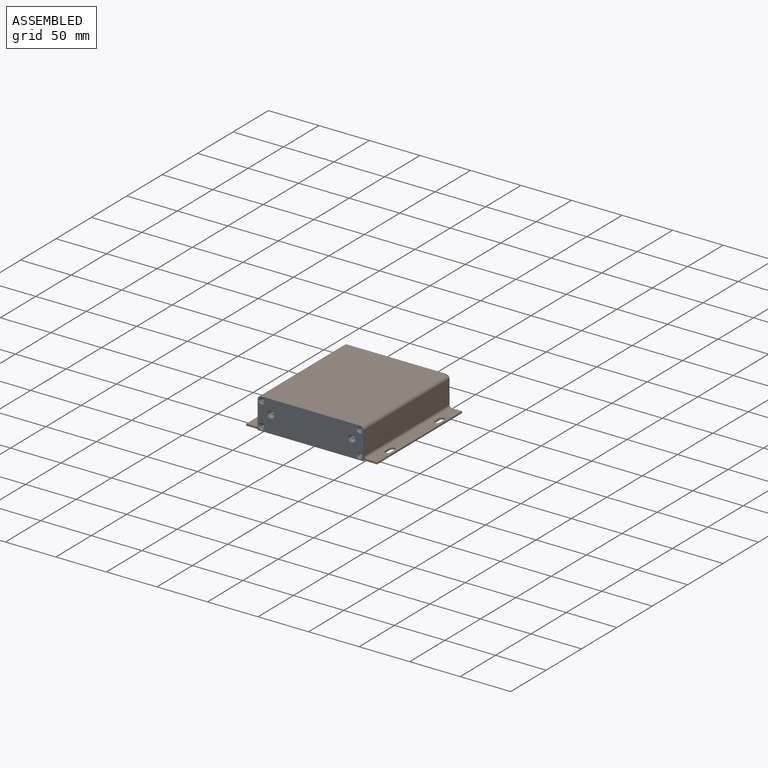
[diagram: assembled view]
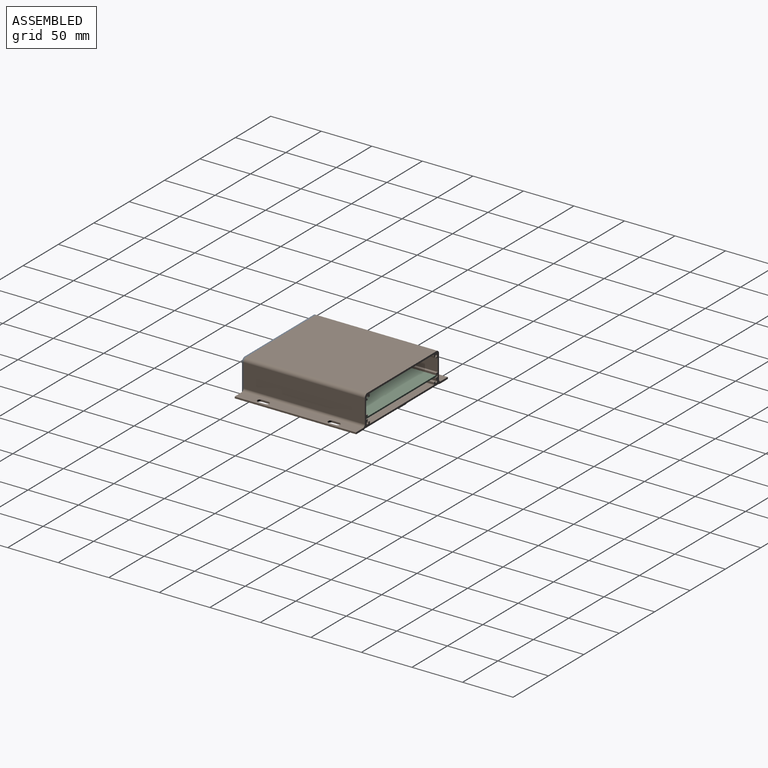
[diagram: assembled view, second angle]
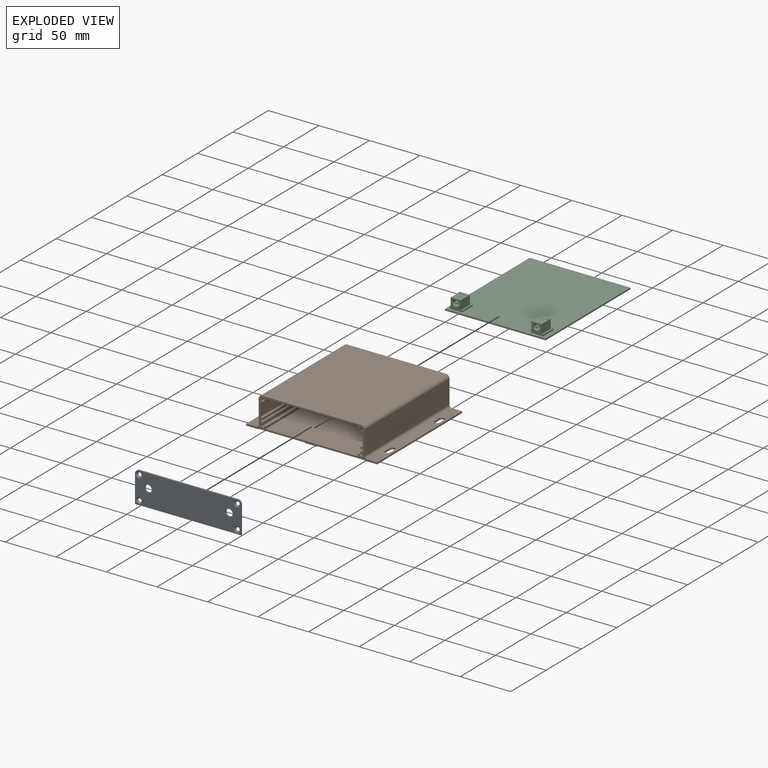
[diagram: exploded view]
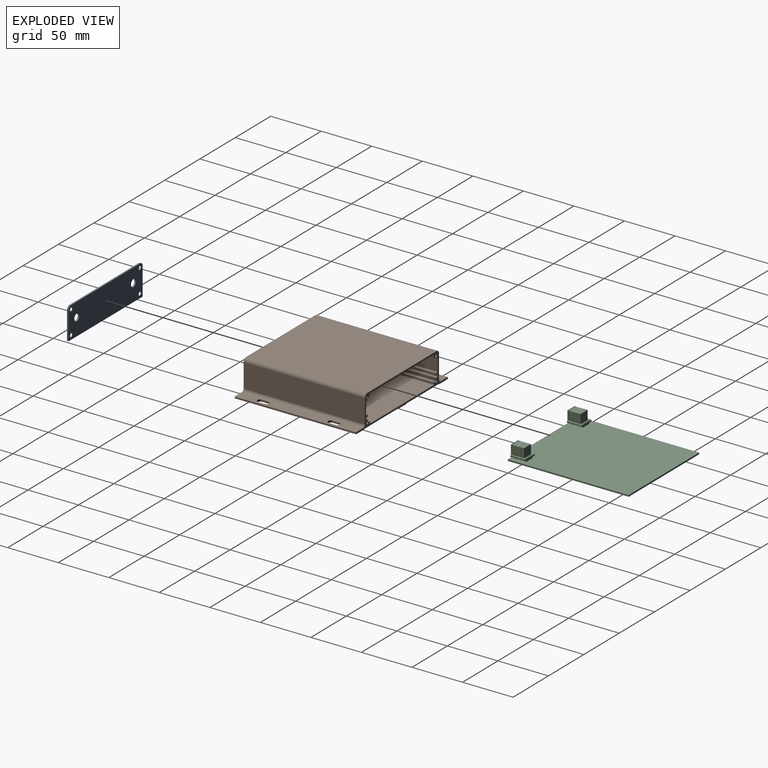
[diagram: exploded view, second angle]
FCSTD DOCUMENT  (FreeCAD 1.0R39319 (Git))
Label: K127-13031-H7-L120_reference_PJ-063AH
License: All rights reserved
LicenseURL: https://en.wikipedia.org/wiki/All_rights_reserved
objects: App::FeaturePython×7, App::Link×3, Assembly::JointGroup×1, Assembly::AssemblyObject×1
EXTERNAL_REF file=K127-13031-H7-L120.FCStd obj=Part__Feature
EXTERNAL_REF file=Reference_PJ-063AH.FCStd obj=Reference_PJ_063AH_1
EXTERNAL_REF file=K127-13031-H7-L120_PJ-063AH.FCStd obj=Body

FEATURE [App::Link] K127_1  label="K127-1"
  LinkPlacement = pos=(0,0,0) rot=(1,0,0;1.5708rad)
  LinkedObject = -> <external K127-13031-H7-L120.FCStd>#Part__Feature
  Placement = pos=(0,0,0) rot=(1,0,0;1.5708rad)
FEATURE [App::FeaturePython] GroundedJoint  # Assembly grounded joint (typed FeaturePython)
  ObjectToGround = -> K127_1
  Placement = pos=(0,0,0) rot=(1,0,0;1.5708rad)
FEATURE [App::Link] Reference_PJ_063AH_1  label="Reference_PJ-063AH 1"
  LinkPlacement = pos=(-6e-16,-0.399999,-7.76) rot=(0.99808,0,0;0rad)
  LinkedObject = -> <external Reference_PJ-063AH.FCStd>#Reference_PJ_063AH_1
  Placement = pos=(-6e-16,-0.399999,-7.76) rot=(0.99808,0,0;0rad)
FEATURE [App::FeaturePython] Joint  label="Distance"  # Assembly joint (typed FeaturePython)
  Activated = true
  AngleMax = 0
  AngleMin = 0
  Detach1 = false
  Detach2 = false
  Distance = 0.7
  Distance2 = 0
  EnableAngleMax = false
  EnableAngleMin = false
  EnableLengthMax = false
  EnableLengthMin = false
  JointType = 5 (Distance)
  LengthMax = 0
  LengthMin = 0
  Offset1 = pos=(0,0,0) rot=(0,0,1;1.5708rad)
  Placement1 = pos=(-49.8,1.8e-15,0.755) rot=(-0.707107,0,0.707107;3.14159rad)
  Placement2 = pos=(-50.5,-7,2.6e-15) rot=(0,1,0;1.5708rad)
  Reference1 = -> Assembly [Reference_PJ_063AH_1.Part__Feature056.Face3,Reference_PJ_063AH_1.Part__Feature056.Vertex4]
  Reference2 = -> Assembly [K127_1.Face92,K127_1.Vertex86]
FEATURE [App::FeaturePython] Joint001  label="Distance001"  # Assembly joint (typed FeaturePython)
  Activated = true
  AngleMax = 0
  AngleMin = 0
  Detach1 = false
  Detach2 = false
  Distance = 0.2
  Distance2 = 0
  EnableAngleMax = false
  EnableAngleMin = false
  EnableLengthMax = false
  EnableLengthMin = false
  JointType = 5 (Distance)
  LengthMax = 0
  LengthMin = 0
  Placement1 = pos=(-0.00415864,-1.35622,60) rot=(0,0,1;0rad)
  Placement2 = pos=(4e-16,-59.8,0.755) rot=(0,-0.707107,0.707107;3.14159rad)
  Reference1 = -> Assembly [K127_1.Face15,K127_1.Vertex86]
  Reference2 = -> Assembly [Reference_PJ_063AH_1.Part__Feature056.Face1,Reference_PJ_063AH_1.Part__Feature056.Vertex4]
FEATURE [App::FeaturePython] Joint002  label="Distance002"  # Assembly joint (typed FeaturePython)
  Activated = true
  AngleMax = 0
  AngleMin = 0
  Detach1 = false
  Detach2 = false
  Distance = 0.25
  Distance2 = 0
  EnableAngleMax = false
  EnableAngleMin = false
  EnableLengthMax = false
  EnableLengthMin = false
  JointType = 5 (Distance)
  LengthMax = 0
  LengthMin = 0
  Placement1 = pos=(0.0019827,0.0381669,1.51) rot=(0,0,1;0rad)
  Placement2 = pos=(-49.425,-6,2.7e-15) rot=(0.57735,0.57735,-0.57735;2.0944rad)
  Reference1 = -> Assembly [Reference_PJ_063AH_1.Part__Feature056.Face5,Reference_PJ_063AH_1.Part__Feature056.Vertex3]
  Reference2 = -> Assembly [K127_1.Face90,K127_1.Vertex88]
FEATURE [App::Link] Frontpanel
  LinkPlacement = pos=(6.3e-15,-60,-9.77524e-06) rot=(0.99808,0,0;0rad)
  LinkedObject = -> <external K127-13031-H7-L120_PJ-063AH.FCStd>#Body
  Placement = pos=(6.3e-15,-60,-9.77524e-06) rot=(0.99808,0,0;0rad)
FEATURE [App::FeaturePython] Joint003  label="Distance003"  # Assembly joint (typed FeaturePython)
  Activated = true
  AngleMax = 0
  AngleMin = 0
  Detach1 = false
  Detach2 = false
  Distance = 0
  Distance2 = 0
  EnableAngleMax = false
  EnableAngleMin = false
  EnableLengthMax = false
  EnableLengthMin = false
  JointType = 5 (Distance)
  LengthMax = 0
  LengthMin = 0
  Offset1 = pos=(0,0,0) rot=(0,0,1;1.5708rad)
  Placement1 = pos=(-0.00415864,-1.35622,60) rot=(0,0,1;1.5708rad)
  Placement2 = pos=(-0.0156138,0,-0.0620964) rot=(-0.576242,-0.576242,-0.576242;2.0944rad)
  Reference1 = -> Assembly [K127_1.Face15,K127_1.Vertex102]
  Reference2 = -> Assembly [Frontpanel.Face2,Frontpanel.Vertex11]
FEATURE [App::FeaturePython] Joint004  label="Distance004"  # Assembly joint (typed FeaturePython)
  Activated = true
  AngleMax = 0
  AngleMin = 0
  Detach1 = false
  Detach2 = false
  Distance = 0
  Distance2 = 0
  EnableAngleMax = false
  EnableAngleMin = false
  EnableLengthMax = false
  EnableLengthMin = false
  JointType = 5 (Distance)
  LengthMax = 0
  LengthMin = 0
  Placement1 = pos=(-5e-16,-0.75,15.5) rot=(0,0.99808,0;3.14159rad)
  Placement2 = pos=(-5e-16,15.5,1.4e-15) rot=(0.57735,0.57735,-0.57735;2.0944rad)
  Reference1 = -> Assembly [Frontpanel.Face6,Frontpanel.Vertex5]
  Reference2 = -> Assembly [K127_1.Face18,K127_1.Vertex51]
FEATURE [App::FeaturePython] Joint005  label="Distance005"  # Assembly joint (typed FeaturePython)
  Activated = true
  AngleMax = 0
  AngleMin = 0
  Detach1 = false
  Detach2 = false
  Distance = 0
  Distance2 = 0
  EnableAngleMax = false
  EnableAngleMin = false
  EnableLengthMax = false
  EnableLengthMin = false
  JointType = 5 (Distance)
  LengthMax = 0
  LengthMin = 0
  Placement1 = pos=(-52.4,0.4,0) rot=(0,1,0;1.5708rad)
  Placement2 = pos=(-52.4,-0.75,-1.75) rot=(0,1,0;1.5708rad)
  Reference1 = -> Assembly [K127_1.Face20,K127_1.Vertex52]
  Reference2 = -> Assembly [Frontpanel.Face1,Frontpanel.Vertex1]
FEATURE [Assembly::JointGroup] Joints
  Group = -> [GroundedJoint,Joint,Joint001,Joint002,Joint003,Joint004,Joint005]
FEATURE [Assembly::AssemblyObject] Assembly
  Group = -> [Joints,K127_1,GroundedJoint,Reference_PJ_063AH_1,Joint,Joint001,Joint002,Frontpanel,Joint003,Joint004,Joint005]
  Origin = -> Origin
  Type = Assembly

RESOLVED EXTERNAL PARTS (link-assembly join: the EXTERNAL_REF files above that resolve inside this repo's crawl, each included once):
---- part K127-13031-H7-L120_PJ-063AH.FCStd = doc fcstd_39acde0204bb ----
FCSTD DOCUMENT  (FreeCAD 1.0R39319 (Git))
Label: K127-13031-H7-L120_PJ-063AH
License: All rights reserved
LicenseURL: https://en.wikipedia.org/wiki/All_rights_reserved
objects: Sketcher::SketchObject×3, PartDesign::Pad×1, PartDesign::Hole×1, PartDesign::Fillet×1, PartDesign::Pocket×1, PartDesign::LinearPattern×1, PartDesign::Body×1
note: 21 computed .brp shape members not serialized (recipe doc carries the construction recipe); baked Part::Feature solids carry a one-line shape summary decoded from their .brp

FEATURE [Sketcher::SketchObject] Sketch  label="Panel"
  ArcFitTolerance = 1e-06
  AttachmentSupport = -> [XZ_Plane]
  FullyConstrained = true
  MakeInternals = false
  MapMode = 5
  Placement = pos=(0,0,0) rot=(1,0,0;1.5708rad)
  sketch-geometry (5):
    g0: LineSegment StartX=-52.4 StartY=15.5 StartZ=0 EndX=-52.4 EndY=-15.5 EndZ=0
    g1: LineSegment StartX=-52.4 StartY=-15.5 StartZ=0 EndX=52.4 EndY=-15.5 EndZ=0
    g2: LineSegment StartX=52.4 StartY=-15.5 StartZ=0 EndX=52.4 EndY=15.5 EndZ=0
    g3: LineSegment StartX=52.4 StartY=15.5 StartZ=0 EndX=-52.4 EndY=15.5 EndZ=0
    g4: GeomPoint [constr] X=0 Y=1e-15 Z=0
  constraints (12):
    c: Coincident(g0,g1)
    c: Coincident(g1,g2)
    c: Coincident(g2,g3)
    c: Coincident(g3,g0)
    c: Vertical(g0)
    c: Vertical(g2)
    c: Horizontal(g1)
    c: Horizontal(g3)
    c: Symmetric(g2,g0,g4)
    c: Coincident(g4,g-1)
    c: DistanceX(g3,g3) = 104.8
    c: DistanceY(g2,g2) = 31
FEATURE [PartDesign::Pad] Pad
  Direction = (0,-1,2e-16)
  Length = 1.5
  Length2 = 10
  Placement = pos=(0,0,0) rot=(1,0,0;1.5708rad)
  Profile = -> Sketch
  ReferenceAxis = -> Sketch [N_Axis]
  Refine = true
  Suppressed = false
  Type = 0
FEATURE [Sketcher::SketchObject] Sketch001  label="CountersunkHolesM3"
  ArcFitTolerance = 1e-06
  AttachmentSupport = -> [Pad]
  FullyConstrained = false
  MakeInternals = false
  MapMode = 5
  Placement = pos=(0,-1.5,0) rot=(1,0,0;1.5708rad)
  sketch-geometry (9):
    g0: LineSegment [constr] StartX=-48.5 StartY=11.5 StartZ=0 EndX=-48.5 EndY=-11.5 EndZ=0
    g1: LineSegment [constr] StartX=-48.5 StartY=-11.5 StartZ=0 EndX=48.5 EndY=-11.5 EndZ=0
    g2: LineSegment [constr] StartX=48.5 StartY=-11.5 StartZ=0 EndX=48.5 EndY=11.5 EndZ=0
    g3: LineSegment [constr] StartX=48.5 StartY=11.5 StartZ=0 EndX=-48.5 EndY=11.5 EndZ=0
    g4: GeomPoint [constr] X=0 Y=0 Z=0
    g5: Circle CenterX=-48.5 CenterY=11.5 CenterZ=0 NormalX=0 NormalY=0 NormalZ=1 AngleXU=0 Radius=1.81072
    g6: Circle CenterX=-48.5 CenterY=-11.5 CenterZ=0 NormalX=0 NormalY=0 NormalZ=1 AngleXU=0 Radius=2.04122
    g7: Circle CenterX=48.5 CenterY=-11.5 CenterZ=0 NormalX=0 NormalY=0 NormalZ=1 AngleXU=0 Radius=1.33516
    g8: Circle CenterX=48.5 CenterY=11.5 CenterZ=0 NormalX=0 NormalY=0 NormalZ=1 AngleXU=0 Radius=1.60036
  constraints (16):
    c: Coincident(g0,g1)
    c: Coincident(g1,g2)
    c: Coincident(g2,g3)
    c: Coincident(g3,g0)
    c: Vertical(g0)
    c: Vertical(g2)
    c: Horizontal(g1)
    c: Horizontal(g3)
    c: Symmetric(g2,g0,g4)
    c: Coincident(g4,g-1)
    c: DistanceX(g3,g3) = 97
    c: Distance(g0,g0) = 23
    c: Coincident(g5,g0)
    c: Coincident(g6,g0)
    c: Coincident(g7,g1)
    c: Coincident(g8,g2)
FEATURE [PartDesign::Hole] Hole
  BaseFeature = -> Pad
  CustomThreadClearance = 0
  Depth = 25
  DepthType = 0
  Diameter = 3.4
  DrillForDepth = false
  DrillPoint = 1
  DrillPointAngle = 118
  HoleCutCountersinkAngle = 90
  HoleCutCustomValues = false
  HoleCutDepth = 0
  HoleCutDiameter = 6.1
  HoleCutType = 2
  ModelThread = false
  Placement = pos=(0,0,0) rot=(1,0,0;1.5708rad)
  Profile = -> Sketch001
  Refine = true
  Suppressed = false
  Tapered = false
  TaperedAngle = 90
  ThreadClass = 0
  ThreadDepth = 25
  ThreadDepthType = 0
  ThreadDirection = 0
  ThreadFit = 0
  ThreadSize = 9
  ThreadType = 1
  Threaded = false
  UseCustomThreadClearance = false
FEATURE [PartDesign::Fillet] Fillet
  Base = -> Hole [Edge1,Edge5]
  BaseFeature = -> Hole
  Placement = pos=(0,0,0) rot=(1,0,0;1.5708rad)
  Radius = 3.5
  Refine = true
  SupportTransform = false
  Suppressed = false
  UseAllEdges = false
FEATURE [Sketcher::SketchObject] Sketch002
  ArcFitTolerance = 1e-06
  AttachmentSupport = -> [Fillet]
  ExternalGeometry = -> [Fillet]
  FullyConstrained = true
  MakeInternals = false
  MapMode = 5
  Placement = pos=(0,-1.5,0) rot=(1,0,0;1.5708rad)
  sketch-geometry (1):
    g0: Circle CenterX=-39.37 CenterY=1.52 CenterZ=0 NormalX=0 NormalY=0 NormalZ=1 AngleXU=0 Radius=3.5
  constraints (3):
    c: Diameter(g0) = 7
    c: Distance(g0,g-3) = 13.03
    c: Distance(g0,g-4) = 17.02
FEATURE [PartDesign::Pocket] Pocket
  BaseFeature = -> Fillet
  Direction = (0,1,-2e-16)
  Length = 5
  Length2 = 5
  Placement = pos=(0,0,0) rot=(1,0,0;1.5708rad)
  Profile = -> Sketch002
  ReferenceAxis = -> Sketch002 [N_Axis]
  Refine = true
  Suppressed = false
  Type = 1
FEATURE [PartDesign::LinearPattern] LinearPattern
  BaseFeature = -> Pocket
  Direction = -> Sketch002 [H_Axis]
  Length = 80.01
  Mode = 0
  Occurrences = 2
  Offset = 80.01
  Originals = -> [Pocket]
  Placement = pos=(0,0,0) rot=(1,0,0;1.5708rad)
  Refine = true
  Suppressed = false
  TransformMode = 0
FEATURE [PartDesign::Body] Body  label="Frontpanel"
  AllowCompound = false
  Group = -> [Sketch,Pad,Sketch001,Hole,Fillet,Sketch002,Pocket,LinearPattern]
  Origin = -> Origin
  Tip = -> LinearPattern
